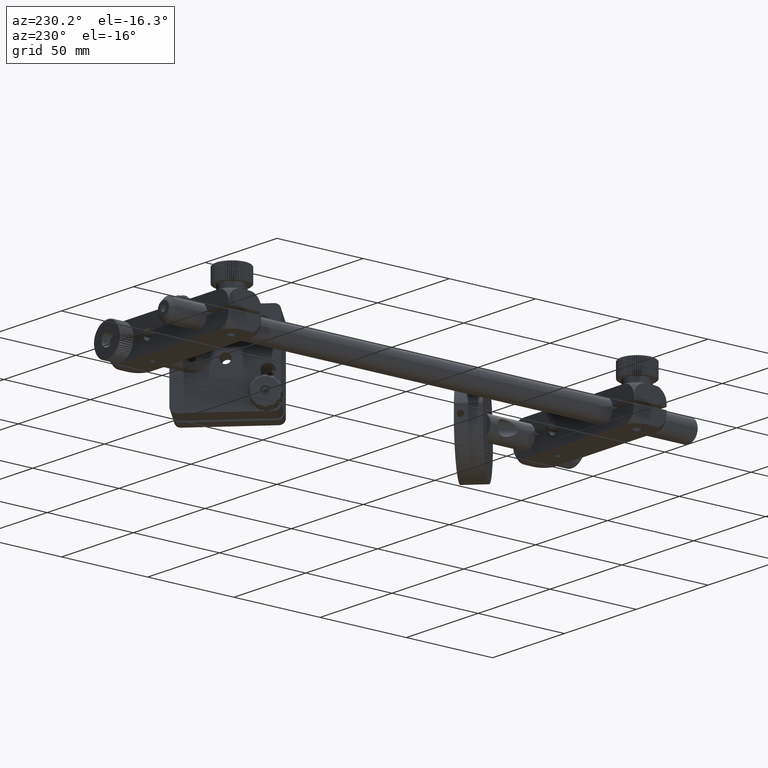
[diagram: clean part render]
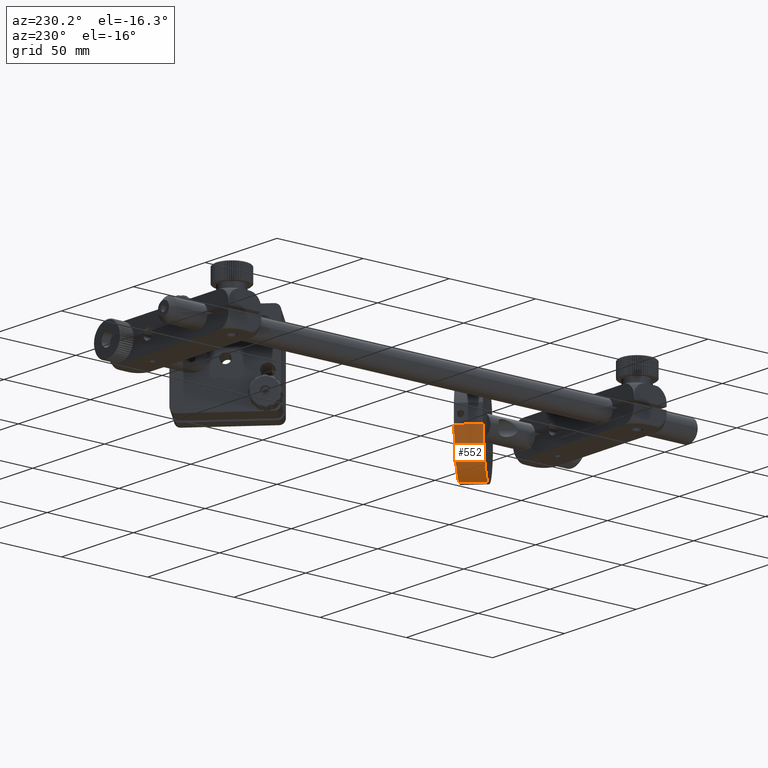
[diagram: same view with one face highlighted and labeled with its STEP entity id]
A machine part, auxiliary view. The second image highlights one B-rep face of the part: STEP entity #552.
In plain terms, the highlighted cylindrical surface (partial cylindrical patch) has radius 25 mm, axis along (0.7071, 0.7071, -0).
Its self-contained STEP definition (entity closure, byte-faithful):
#552 = ADVANCED_FACE ( 'NONE', ( #23998 ), #18111, .T. ) ;
#742 = EDGE_CURVE ( 'NONE', #25859, #25265, #21038, .T. ) ;
#6535 = VERTEX_POINT ( 'NONE', #42228 ) ;
#8704 = CARTESIAN_POINT ( 'NONE',  ( 63.17490690945618300, 175.2269643877686500, -3.477788635764118600E-014 ) ) ;
#8760 = VERTEX_POINT ( 'NONE', #39874 ) ;
#9026 = DIRECTION ( 'NONE',  ( 0.7071067811865436900, 0.7071067811865513500, -8.857653760959803700E-016 ) ) ;
#9640 = ORIENTED_EDGE ( 'NONE', *, *, #36940, .T. ) ;
#14071 = CARTESIAN_POINT ( 'NONE',  ( 36.65840261496060000, 183.3586923714137800, -4.974937185533107700 ) ) ;
#15010 = LINE ( 'NONE', #47173, #38952 ) ;
#15723 = EDGE_LOOP ( 'NONE', ( #31821, #36934, #9640, #38784 ) ) ;
#17859 = CIRCLE ( 'NONE', #26959, 25.00000000000000000 ) ;
#18111 = CYLINDRICAL_SURFACE ( 'NONE', #30889, 25.00000000000000000 ) ;
#19106 = CARTESIAN_POINT ( 'NONE',  ( 53.98251875403110500, 166.0345762323434500, -2.326293646839336500E-014 ) ) ;
#21038 = CIRCLE ( 'NONE', #21784, 25.00000000000000000 ) ;
#21784 = AXIS2_PLACEMENT_3D ( 'NONE', #46170, #42727, #31886 ) ;
#22911 = CARTESIAN_POINT ( 'NONE',  ( 53.98251875403113300, 166.0345762323434300, -25.00000000000002500 ) ) ;
#23642 = LINE ( 'NONE', #22911, #38246 ) ;
#23998 = FACE_OUTER_BOUND ( 'NONE', #15723, .T. ) ;
#25265 = VERTEX_POINT ( 'NONE', #14071 ) ;
#25859 = VERTEX_POINT ( 'NONE', #30929 ) ;
#26505 = DIRECTION ( 'NONE',  ( 0.7071067811865436900, 0.7071067811865513500, -8.857653760959804700E-016 ) ) ;
#26847 = DIRECTION ( 'NONE',  ( 0.7071067811865436900, 0.7071067811865513500, -8.857653760959804700E-016 ) ) ;
#26959 = AXIS2_PLACEMENT_3D ( 'NONE', #8704, #9026, #34817 ) ;
#30889 = AXIS2_PLACEMENT_3D ( 'NONE', #19106, #26505, #33850 ) ;
#30929 = CARTESIAN_POINT ( 'NONE',  ( 53.98251875403111200, 166.0345762323434000, -25.00000000000002500 ) ) ;
#31466 = EDGE_CURVE ( 'NONE', #25859, #8760, #23642, .T. ) ;
#31821 = ORIENTED_EDGE ( 'NONE', *, *, #31466, .F. ) ;
#31886 = DIRECTION ( 'NONE',  ( 1.387778780781445700E-015, -1.110223024625156500E-015, -1.000000000000000000 ) ) ;
#32582 = DIRECTION ( 'NONE',  ( 0.7071067811865436900, 0.7071067811865513500, -8.857653760959804700E-016 ) ) ;
#33850 = DIRECTION ( 'NONE',  ( 1.387778780781445700E-015, -1.110223024625156500E-015, -1.000000000000000000 ) ) ;
#34817 = DIRECTION ( 'NONE',  ( 1.665334536937734800E-015, -1.110223024625156500E-015, -1.000000000000000000 ) ) ;
#36934 = ORIENTED_EDGE ( 'NONE', *, *, #742, .T. ) ;
#36940 = EDGE_CURVE ( 'NONE', #25265, #6535, #15010, .T. ) ;
#37832 = EDGE_CURVE ( 'NONE', #8760, #6535, #17859, .T. ) ;
#38246 = VECTOR ( 'NONE', #26847, 1000.000000000000000 ) ;
#38784 = ORIENTED_EDGE ( 'NONE', *, *, #37832, .F. ) ;
#38952 = VECTOR ( 'NONE', #32582, 1000.000000000000000 ) ;
#39874 = CARTESIAN_POINT ( 'NONE',  ( 63.17490690945619000, 175.2269643877685900, -25.00000000000003600 ) ) ;
#42228 = CARTESIAN_POINT ( 'NONE',  ( 45.85079077038567200, 192.5510805268389400, -4.974937185533122800 ) ) ;
#42727 = DIRECTION ( 'NONE',  ( 0.7071067811865436900, 0.7071067811865513500, -8.857653760959803700E-016 ) ) ;
#46170 = CARTESIAN_POINT ( 'NONE',  ( 53.98251875403110500, 166.0345762323434500, -2.326293646839336500E-014 ) ) ;
#47173 = CARTESIAN_POINT ( 'NONE',  ( 36.65840261496060000, 183.3586923714137800, -4.974937185533107700 ) ) ;